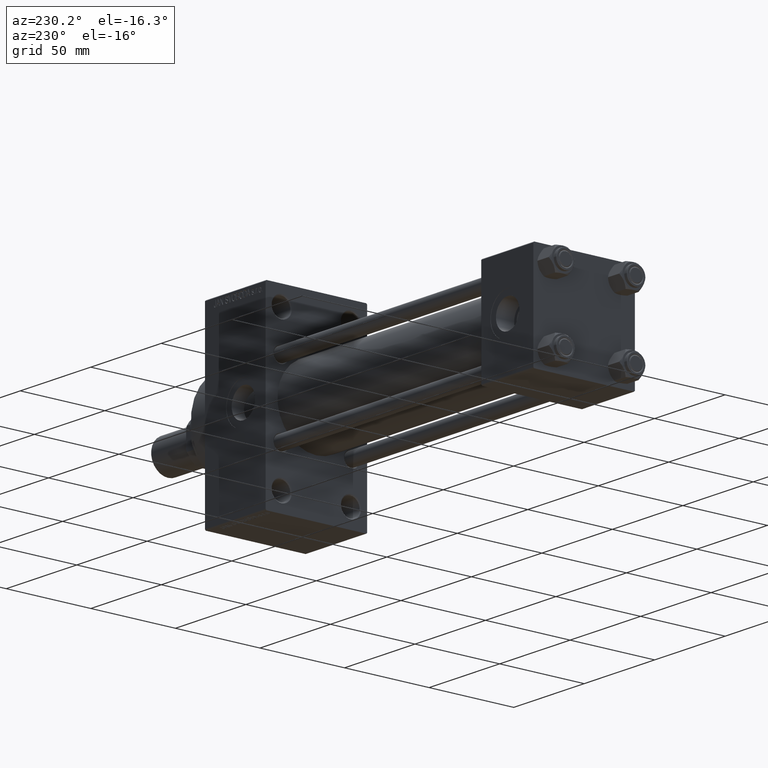
[diagram: clean part render]
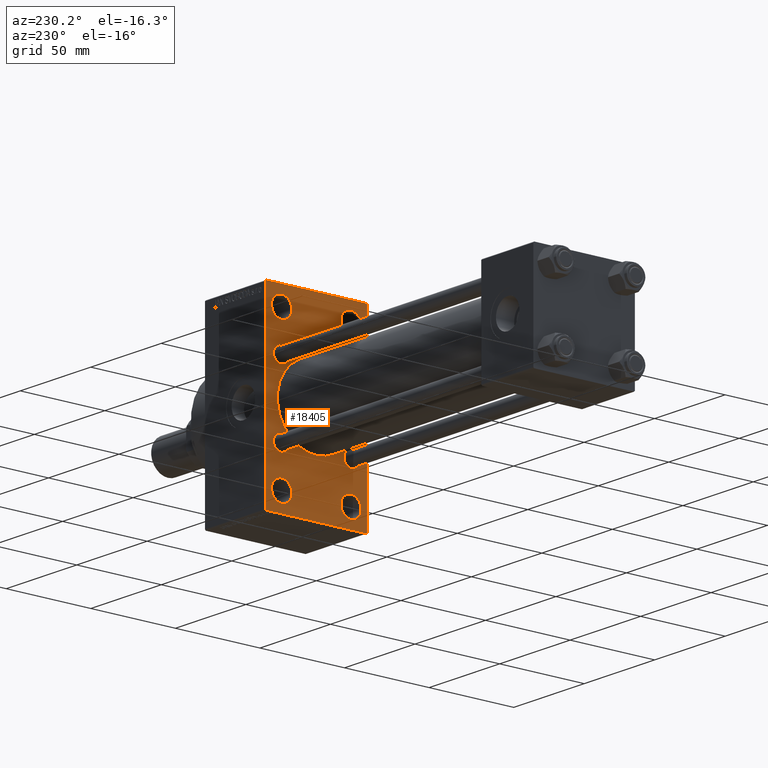
[diagram: same view with one face highlighted and labeled with its STEP entity id]
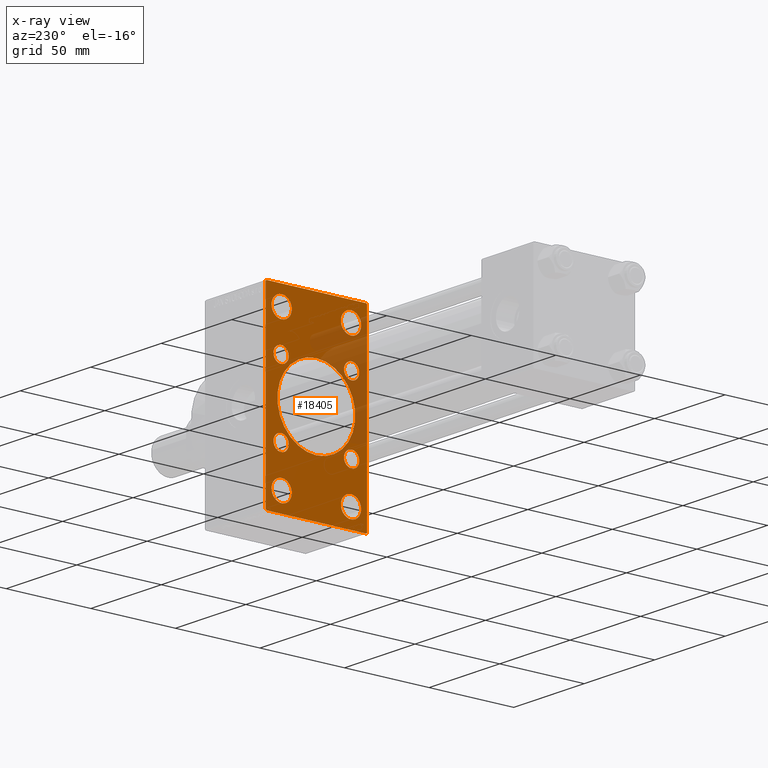
[diagram: x-ray of the same camera — body ghosted, the highlighted face saturated]
A machine part, auxiliary view. The second image highlights one B-rep face of the part: STEP entity #18405.
The next image is the same camera in x-ray: the body ghosted, the highlighted face saturated — about 19% of this face is hidden behind the body in this view.
In plain terms, the highlighted planar face has unit normal (-1, 0, 0).
Its self-contained STEP definition (entity closure, byte-faithful):
#133 = CARTESIAN_POINT ( 'NONE',  ( 190.0000000000000000, 20.50000000000000000, 49.50000000000002842 ) ) ;
#409 = CIRCLE ( 'NONE', #42805, 6.000000000000032863 ) ;
#588 = EDGE_LOOP ( 'NONE', ( #32797, #25809 ) ) ;
#665 = LINE ( 'NONE', #18767, #21234 ) ;
#837 = CARTESIAN_POINT ( 'NONE',  ( 190.0000000000000000, 20.50000000000000000, 43.50000000000000000 ) ) ;
#855 = VERTEX_POINT ( 'NONE', #12144 ) ;
#1252 = CARTESIAN_POINT ( 'NONE',  ( 190.0000000000000000, -20.84999999999999076, 16.34999999999999787 ) ) ;
#1516 = VERTEX_POINT ( 'NONE', #11193 ) ;
#1728 = DIRECTION ( 'NONE',  ( 1.000000000000000000, -0.000000000000000000, 0.000000000000000000 ) ) ;
#1781 = CARTESIAN_POINT ( 'NONE',  ( 190.0000000000000000, 29.99999999999999645, 54.49999999999999289 ) ) ;
#2284 = VERTEX_POINT ( 'NONE', #133 ) ;
#2349 = VERTEX_POINT ( 'NONE', #33930 ) ;
#2747 = DIRECTION ( 'NONE',  ( 1.000000000000000000, -0.000000000000000000, 0.000000000000000000 ) ) ;
#2772 = CARTESIAN_POINT ( 'NONE',  ( 190.0000000000000000, -20.84999999999999076, -25.35000000000001208 ) ) ;
#2862 = DIRECTION ( 'NONE',  ( -0.000000000000000000, 0.7071067811865451302, 0.7071067811865500152 ) ) ;
#2889 = VERTEX_POINT ( 'NONE', #20971 ) ;
#3001 = CARTESIAN_POINT ( 'NONE',  ( 190.0000000000000000, 29.99999999999999645, -53.99999999999999289 ) ) ;
#3039 = EDGE_CURVE ( 'NONE', #22940, #7511, #40424, .T. ) ;
#3047 = CARTESIAN_POINT ( 'NONE',  ( 190.0000000000000000, 20.84999999999999787, -20.85000000000000142 ) ) ;
#3224 = AXIS2_PLACEMENT_3D ( 'NONE', #45715, #5160, #5644 ) ;
#3840 = DIRECTION ( 'NONE',  ( 0.000000000000000000, 0.000000000000000000, -1.000000000000000000 ) ) ;
#3885 = CIRCLE ( 'NONE', #36261, 4.500000000000007105 ) ;
#3960 = VERTEX_POINT ( 'NONE', #34699 ) ;
#4044 = ORIENTED_EDGE ( 'NONE', *, *, #27267, .T. ) ;
#4435 = EDGE_LOOP ( 'NONE', ( #10347, #12776 ) ) ;
#4749 = VECTOR ( 'NONE', #7026, 1000.000000000000000 ) ;
#4860 = AXIS2_PLACEMENT_3D ( 'NONE', #20048, #23911, #20295 ) ;
#5123 = CIRCLE ( 'NONE', #32120, 6.000000000000032863 ) ;
#5139 = ORIENTED_EDGE ( 'NONE', *, *, #13516, .T. ) ;
#5160 = DIRECTION ( 'NONE',  ( 1.000000000000000000, -0.000000000000000000, 0.000000000000000000 ) ) ;
#5574 = CARTESIAN_POINT ( 'NONE',  ( 190.0000000000000000, 20.84999999999999787, 25.35000000000000853 ) ) ;
#5644 = DIRECTION ( 'NONE',  ( 0.000000000000000000, 0.000000000000000000, 1.000000000000000000 ) ) ;
#6079 = EDGE_CURVE ( 'NONE', #2889, #21177, #665, .T. ) ;
#6340 = AXIS2_PLACEMENT_3D ( 'NONE', #45184, #1728, #34574 ) ;
#6479 = LINE ( 'NONE', #43645, #43540 ) ;
#6529 = DIRECTION ( 'NONE',  ( 1.000000000000000000, -0.000000000000000000, 0.000000000000000000 ) ) ;
#6825 = DIRECTION ( 'NONE',  ( -1.000000000000000000, 0.000000000000000000, -0.000000000000000000 ) ) ;
#6989 = DIRECTION ( 'NONE',  ( 0.000000000000000000, 0.000000000000000000, 1.000000000000000000 ) ) ;
#7026 = DIRECTION ( 'NONE',  ( 0.000000000000000000, 0.000000000000000000, -1.000000000000000000 ) ) ;
#7043 = ORIENTED_EDGE ( 'NONE', *, *, #14968, .T. ) ;
#7327 = CARTESIAN_POINT ( 'NONE',  ( 190.0000000000000000, -20.84999999999999076, -20.85000000000000497 ) ) ;
#7336 = CARTESIAN_POINT ( 'NONE',  ( 190.0000000000000000, 20.84999999999999787, 20.85000000000000142 ) ) ;
#7427 = CARTESIAN_POINT ( 'NONE',  ( 190.0000000000000000, 20.50000000000000000, -49.50000000000002842 ) ) ;
#7476 = DIRECTION ( 'NONE',  ( 1.000000000000000000, 0.000000000000000000, 0.000000000000000000 ) ) ;
#7511 = VERTEX_POINT ( 'NONE', #47394 ) ;
#7602 = DIRECTION ( 'NONE',  ( 0.000000000000000000, 0.000000000000000000, 1.000000000000000000 ) ) ;
#7657 = LINE ( 'NONE', #29390, #29370 ) ;
#7964 = DIRECTION ( 'NONE',  ( 0.000000000000000000, 0.000000000000000000, 1.000000000000000000 ) ) ;
#8258 = CIRCLE ( 'NONE', #26732, 4.500000000000007105 ) ;
#8425 = CARTESIAN_POINT ( 'NONE',  ( 190.0000000000000000, -29.50000000000000355, -54.50000000000000000 ) ) ;
#8476 = DIRECTION ( 'NONE',  ( 0.000000000000000000, 0.000000000000000000, 1.000000000000000000 ) ) ;
#9237 = AXIS2_PLACEMENT_3D ( 'NONE', #39572, #33033, #14435 ) ;
#9304 = CARTESIAN_POINT ( 'NONE',  ( 190.0000000000000000, -20.50000000000000000, 43.50000000000000000 ) ) ;
#9881 = ORIENTED_EDGE ( 'NONE', *, *, #17416, .T. ) ;
#9968 = CARTESIAN_POINT ( 'NONE',  ( 190.0000000000000000, 29.49999999999999645, 54.49999999999999289 ) ) ;
#10007 = ORIENTED_EDGE ( 'NONE', *, *, #15688, .F. ) ;
#10347 = ORIENTED_EDGE ( 'NONE', *, *, #20755, .T. ) ;
#10422 = ORIENTED_EDGE ( 'NONE', *, *, #16259, .T. ) ;
#10434 = PLANE ( 'NONE',  #27194 ) ;
#11074 = CIRCLE ( 'NONE', #33448, 6.000000000000032863 ) ;
#11102 = VERTEX_POINT ( 'NONE', #7427 ) ;
#11150 = CARTESIAN_POINT ( 'NONE',  ( 190.0000000000000000, -20.84999999999999076, 20.85000000000000497 ) ) ;
#11165 = DIRECTION ( 'NONE',  ( 0.000000000000000000, 0.000000000000000000, 1.000000000000000000 ) ) ;
#11193 = CARTESIAN_POINT ( 'NONE',  ( 190.0000000000000000, 20.84999999999999787, 16.34999999999999432 ) ) ;
#11565 = AXIS2_PLACEMENT_3D ( 'NONE', #11150, #2747, #24946 ) ;
#11683 = CIRCLE ( 'NONE', #3224, 4.500000000000007105 ) ;
#12078 = VERTEX_POINT ( 'NONE', #42404 ) ;
#12131 = CARTESIAN_POINT ( 'NONE',  ( 190.0000000000000000, 20.50000000000000000, 37.49999999999996447 ) ) ;
#12144 = CARTESIAN_POINT ( 'NONE',  ( 190.0000000000000000, -20.84999999999999076, 25.35000000000001208 ) ) ;
#12263 = CARTESIAN_POINT ( 'NONE',  ( 190.0000000000000000, 20.50000000000000000, -43.50000000000000000 ) ) ;
#12439 = DIRECTION ( 'NONE',  ( 1.000000000000000000, -0.000000000000000000, 0.000000000000000000 ) ) ;
#12776 = ORIENTED_EDGE ( 'NONE', *, *, #36353, .T. ) ;
#12827 = EDGE_CURVE ( 'NONE', #47519, #31850, #30045, .T. ) ;
#12912 = DIRECTION ( 'NONE',  ( 0.000000000000000000, 0.000000000000000000, 1.000000000000000000 ) ) ;
#12929 = LINE ( 'NONE', #35164, #40240 ) ;
#12941 = FACE_BOUND ( 'NONE', #37028, .T. ) ;
#13265 = CARTESIAN_POINT ( 'NONE',  ( 190.0000000000000000, 20.84999999999999787, -25.35000000000000853 ) ) ;
#13475 = CARTESIAN_POINT ( 'NONE',  ( 190.0000000000000000, -30.00000000000000000, -53.99999999999998579 ) ) ;
#13516 = EDGE_CURVE ( 'NONE', #29473, #1516, #3885, .T. ) ;
#14263 = ORIENTED_EDGE ( 'NONE', *, *, #24944, .T. ) ;
#14435 = DIRECTION ( 'NONE',  ( 0.000000000000000000, 0.000000000000000000, -1.000000000000000000 ) ) ;
#14599 = CARTESIAN_POINT ( 'NONE',  ( 190.0000000000000000, 29.99999999999999645, 54.49999999999999289 ) ) ;
#14818 = CARTESIAN_POINT ( 'NONE',  ( 190.0000000000000000, 20.50000000000000000, -43.50000000000000000 ) ) ;
#14968 = EDGE_CURVE ( 'NONE', #1516, #29473, #19357, .T. ) ;
#15646 = DIRECTION ( 'NONE',  ( 0.000000000000000000, 0.000000000000000000, 1.000000000000000000 ) ) ;
#15688 = EDGE_CURVE ( 'NONE', #38583, #37277, #20124, .T. ) ;
#16083 = AXIS2_PLACEMENT_3D ( 'NONE', #3047, #25495, #25745 ) ;
#16259 = EDGE_CURVE ( 'NONE', #31850, #47519, #24062, .T. ) ;
#16312 = FACE_OUTER_BOUND ( 'NONE', #43351, .T. ) ;
#16396 = DIRECTION ( 'NONE',  ( 1.000000000000000000, -0.000000000000000000, 0.000000000000000000 ) ) ;
#16532 = DIRECTION ( 'NONE',  ( 1.000000000000000000, -0.000000000000000000, 0.000000000000000000 ) ) ;
#16549 = ORIENTED_EDGE ( 'NONE', *, *, #30697, .T. ) ;
#16883 = ORIENTED_EDGE ( 'NONE', *, *, #20263, .T. ) ;
#17416 = EDGE_CURVE ( 'NONE', #38583, #2349, #12929, .T. ) ;
#17680 = FACE_BOUND ( 'NONE', #19448, .T. ) ;
#17878 = VERTEX_POINT ( 'NONE', #1252 ) ;
#17933 = DIRECTION ( 'NONE',  ( 1.000000000000000000, -0.000000000000000000, 0.000000000000000000 ) ) ;
#18405 = ADVANCED_FACE ( 'NONE', ( #12941, #17680, #28801, #46255, #27676, #27913, #42632, #36283, #47118, #16312 ), #10434, .T. ) ;
#18472 = DIRECTION ( 'NONE',  ( 0.000000000000000000, 0.000000000000000000, -1.000000000000000000 ) ) ;
#18767 = CARTESIAN_POINT ( 'NONE',  ( 190.0000000000000000, 29.99999999999999645, -54.49999999999999289 ) ) ;
#19357 = CIRCLE ( 'NONE', #27084, 4.500000000000007105 ) ;
#19375 = VERTEX_POINT ( 'NONE', #39033 ) ;
#19448 = EDGE_LOOP ( 'NONE', ( #26913, #32156 ) ) ;
#19503 = ORIENTED_EDGE ( 'NONE', *, *, #30296, .T. ) ;
#19521 = CIRCLE ( 'NONE', #4860, 6.000000000000032863 ) ;
#20029 = ORIENTED_EDGE ( 'NONE', *, *, #31494, .T. ) ;
#20048 = CARTESIAN_POINT ( 'NONE',  ( 190.0000000000000000, -20.50000000000000000, -43.50000000000000000 ) ) ;
#20124 = LINE ( 'NONE', #1781, #44787 ) ;
#20263 = EDGE_CURVE ( 'NONE', #19375, #3960, #40313, .T. ) ;
#20295 = DIRECTION ( 'NONE',  ( 0.000000000000000000, 0.000000000000000000, 1.000000000000000000 ) ) ;
#20518 = EDGE_CURVE ( 'NONE', #17878, #855, #11683, .T. ) ;
#20755 = EDGE_CURVE ( 'NONE', #38870, #39509, #20985, .T. ) ;
#20971 = CARTESIAN_POINT ( 'NONE',  ( 190.0000000000000000, 29.49999999999999645, -54.49999999999999289 ) ) ;
#20985 = CIRCLE ( 'NONE', #6340, 4.500000000000007105 ) ;
#21122 = VECTOR ( 'NONE', #46603, 1000.000000000000114 ) ;
#21177 = VERTEX_POINT ( 'NONE', #8425 ) ;
#21234 = VECTOR ( 'NONE', #32794, 1000.000000000000000 ) ;
#21513 = LINE ( 'NONE', #36253, #4749 ) ;
#21612 = LINE ( 'NONE', #14599, #25975 ) ;
#22079 = CIRCLE ( 'NONE', #36773, 6.000000000000032863 ) ;
#22353 = ORIENTED_EDGE ( 'NONE', *, *, #37478, .T. ) ;
#22404 = AXIS2_PLACEMENT_3D ( 'NONE', #23163, #17933, #7964 ) ;
#22940 = VERTEX_POINT ( 'NONE', #31330 ) ;
#23163 = CARTESIAN_POINT ( 'NONE',  ( 190.0000000000000000, -20.84999999999999076, -20.85000000000000497 ) ) ;
#23332 = ORIENTED_EDGE ( 'NONE', *, *, #20518, .T. ) ;
#23911 = DIRECTION ( 'NONE',  ( 1.000000000000000000, -0.000000000000000000, 0.000000000000000000 ) ) ;
#24062 = CIRCLE ( 'NONE', #31741, 23.00000000000000000 ) ;
#24227 = ORIENTED_EDGE ( 'NONE', *, *, #24620, .T. ) ;
#24414 = CIRCLE ( 'NONE', #29018, 6.000000000000032863 ) ;
#24620 = EDGE_CURVE ( 'NONE', #40887, #2889, #26343, .T. ) ;
#24869 = EDGE_LOOP ( 'NONE', ( #5139, #7043 ) ) ;
#24944 = EDGE_CURVE ( 'NONE', #37858, #11102, #11074, .T. ) ;
#24946 = DIRECTION ( 'NONE',  ( 0.000000000000000000, 0.000000000000000000, 1.000000000000000000 ) ) ;
#25140 = VERTEX_POINT ( 'NONE', #13475 ) ;
#25181 = DIRECTION ( 'NONE',  ( -0.000000000000000000, 0.000000000000000000, 1.000000000000000000 ) ) ;
#25208 = DIRECTION ( 'NONE',  ( 0.000000000000000000, 0.000000000000000000, 1.000000000000000000 ) ) ;
#25495 = DIRECTION ( 'NONE',  ( 1.000000000000000000, -0.000000000000000000, 0.000000000000000000 ) ) ;
#25745 = DIRECTION ( 'NONE',  ( 0.000000000000000000, 0.000000000000000000, 1.000000000000000000 ) ) ;
#25809 = ORIENTED_EDGE ( 'NONE', *, *, #38678, .T. ) ;
#25964 = DIRECTION ( 'NONE',  ( 1.000000000000000000, -0.000000000000000000, 0.000000000000000000 ) ) ;
#25975 = VECTOR ( 'NONE', #18472, 1000.000000000000000 ) ;
#26245 = DIRECTION ( 'NONE',  ( 0.000000000000000000, -0.7071067811865352493, 0.7071067811865597852 ) ) ;
#26343 = LINE ( 'NONE', #41057, #21122 ) ;
#26732 = AXIS2_PLACEMENT_3D ( 'NONE', #7327, #44253, #11165 ) ;
#26772 = DIRECTION ( 'NONE',  ( 1.000000000000000000, -0.000000000000000000, 0.000000000000000000 ) ) ;
#26913 = ORIENTED_EDGE ( 'NONE', *, *, #3039, .T. ) ;
#27084 = AXIS2_PLACEMENT_3D ( 'NONE', #7336, #44506, #25208 ) ;
#27194 = AXIS2_PLACEMENT_3D ( 'NONE', #43516, #6825, #25181 ) ;
#27267 = EDGE_CURVE ( 'NONE', #36025, #37277, #6479, .T. ) ;
#27527 = CARTESIAN_POINT ( 'NONE',  ( 190.0000000000000000, -20.50000000000000000, 43.50000000000000000 ) ) ;
#27676 = FACE_BOUND ( 'NONE', #35909, .T. ) ;
#27714 = EDGE_CURVE ( 'NONE', #39999, #2284, #409, .T. ) ;
#27913 = FACE_BOUND ( 'NONE', #24869, .T. ) ;
#28753 = VERTEX_POINT ( 'NONE', #2772 ) ;
#28801 = FACE_BOUND ( 'NONE', #35352, .T. ) ;
#29018 = AXIS2_PLACEMENT_3D ( 'NONE', #14818, #40422, #8476 ) ;
#29370 = VECTOR ( 'NONE', #26245, 1000.000000000000000 ) ;
#29390 = CARTESIAN_POINT ( 'NONE',  ( 190.0000000000000000, -42.00000000000051159, -41.99999999999905498 ) ) ;
#29434 = CARTESIAN_POINT ( 'NONE',  ( 190.0000000000000000, -2.602085213965210642E-15, 0.000000000000000000 ) ) ;
#29473 = VERTEX_POINT ( 'NONE', #5574 ) ;
#30045 = CIRCLE ( 'NONE', #9237, 23.00000000000000000 ) ;
#30296 = EDGE_CURVE ( 'NONE', #11102, #37858, #24414, .T. ) ;
#30697 = EDGE_CURVE ( 'NONE', #2284, #39999, #22079, .T. ) ;
#31330 = CARTESIAN_POINT ( 'NONE',  ( 190.0000000000000000, -20.50000000000000000, -37.49999999999996447 ) ) ;
#31391 = DIRECTION ( 'NONE',  ( 0.000000000000000000, 0.000000000000000000, 1.000000000000000000 ) ) ;
#31494 = EDGE_CURVE ( 'NONE', #3960, #19375, #5123, .T. ) ;
#31741 = AXIS2_PLACEMENT_3D ( 'NONE', #29434, #7476, #3840 ) ;
#31850 = VERTEX_POINT ( 'NONE', #37122 ) ;
#32086 = EDGE_CURVE ( 'NONE', #2349, #40887, #21612, .T. ) ;
#32120 = AXIS2_PLACEMENT_3D ( 'NONE', #27527, #16396, #31391 ) ;
#32156 = ORIENTED_EDGE ( 'NONE', *, *, #47235, .T. ) ;
#32333 = EDGE_LOOP ( 'NONE', ( #10422, #44105 ) ) ;
#32458 = DIRECTION ( 'NONE',  ( 0.000000000000000000, 0.7071067811865474617, -0.7071067811865474617 ) ) ;
#32794 = DIRECTION ( 'NONE',  ( 0.000000000000000000, -1.000000000000000000, -1.156482317317871478E-16 ) ) ;
#32797 = ORIENTED_EDGE ( 'NONE', *, *, #35540, .T. ) ;
#32830 = EDGE_LOOP ( 'NONE', ( #16549, #39010 ) ) ;
#33014 = DIRECTION ( 'NONE',  ( 1.000000000000000000, -0.000000000000000000, 0.000000000000000000 ) ) ;
#33033 = DIRECTION ( 'NONE',  ( 1.000000000000000000, 0.000000000000000000, 0.000000000000000000 ) ) ;
#33054 = CIRCLE ( 'NONE', #16083, 4.500000000000007105 ) ;
#33448 = AXIS2_PLACEMENT_3D ( 'NONE', #12263, #26772, #15646 ) ;
#33930 = CARTESIAN_POINT ( 'NONE',  ( 190.0000000000000000, 29.99999999999999645, 53.99999999999999289 ) ) ;
#33970 = CARTESIAN_POINT ( 'NONE',  ( 190.0000000000000000, -29.50000000000000355, 54.50000000000000000 ) ) ;
#34574 = DIRECTION ( 'NONE',  ( 0.000000000000000000, 0.000000000000000000, 1.000000000000000000 ) ) ;
#34699 = CARTESIAN_POINT ( 'NONE',  ( 190.0000000000000000, -20.50000000000000000, 37.49999999999996447 ) ) ;
#34855 = DIRECTION ( 'NONE',  ( 0.000000000000000000, -1.000000000000000000, 1.156482317317871478E-16 ) ) ;
#35164 = CARTESIAN_POINT ( 'NONE',  ( 190.0000000000000000, 41.99999999999998579, 41.99999999999998579 ) ) ;
#35169 = ORIENTED_EDGE ( 'NONE', *, *, #32086, .T. ) ;
#35250 = ORIENTED_EDGE ( 'NONE', *, *, #6079, .T. ) ;
#35352 = EDGE_LOOP ( 'NONE', ( #14263, #19503 ) ) ;
#35540 = EDGE_CURVE ( 'NONE', #12078, #28753, #8258, .T. ) ;
#35909 = EDGE_LOOP ( 'NONE', ( #22353, #23332 ) ) ;
#36025 = VERTEX_POINT ( 'NONE', #40752 ) ;
#36253 = CARTESIAN_POINT ( 'NONE',  ( 190.0000000000000000, -30.00000000000000000, 54.50000000000000000 ) ) ;
#36261 = AXIS2_PLACEMENT_3D ( 'NONE', #45747, #16532, #12912 ) ;
#36283 = FACE_BOUND ( 'NONE', #588, .T. ) ;
#36353 = EDGE_CURVE ( 'NONE', #39509, #38870, #33054, .T. ) ;
#36733 = CARTESIAN_POINT ( 'NONE',  ( 190.0000000000000000, 2.146024240737016609E-16, -23.00000000000000000 ) ) ;
#36773 = AXIS2_PLACEMENT_3D ( 'NONE', #40061, #6529, #6989 ) ;
#37028 = EDGE_LOOP ( 'NONE', ( #16883, #20029 ) ) ;
#37109 = CARTESIAN_POINT ( 'NONE',  ( 190.0000000000000000, -20.50000000000000000, -43.50000000000000000 ) ) ;
#37122 = CARTESIAN_POINT ( 'NONE',  ( 190.0000000000000000, -2.602085213965210642E-15, 23.00000000000000000 ) ) ;
#37277 = VERTEX_POINT ( 'NONE', #33970 ) ;
#37478 = EDGE_CURVE ( 'NONE', #855, #17878, #43191, .T. ) ;
#37858 = VERTEX_POINT ( 'NONE', #46097 ) ;
#38016 = EDGE_CURVE ( 'NONE', #21177, #25140, #7657, .T. ) ;
#38583 = VERTEX_POINT ( 'NONE', #9968 ) ;
#38678 = EDGE_CURVE ( 'NONE', #28753, #12078, #43223, .T. ) ;
#38870 = VERTEX_POINT ( 'NONE', #39106 ) ;
#39010 = ORIENTED_EDGE ( 'NONE', *, *, #27714, .T. ) ;
#39033 = CARTESIAN_POINT ( 'NONE',  ( 190.0000000000000000, -20.50000000000000000, 49.50000000000002842 ) ) ;
#39106 = CARTESIAN_POINT ( 'NONE',  ( 190.0000000000000000, 20.84999999999999787, -16.34999999999999432 ) ) ;
#39509 = VERTEX_POINT ( 'NONE', #13265 ) ;
#39572 = CARTESIAN_POINT ( 'NONE',  ( 190.0000000000000000, -2.602085213965210642E-15, 0.000000000000000000 ) ) ;
#39999 = VERTEX_POINT ( 'NONE', #12131 ) ;
#40061 = CARTESIAN_POINT ( 'NONE',  ( 190.0000000000000000, 20.50000000000000000, 43.50000000000000000 ) ) ;
#40156 = EDGE_CURVE ( 'NONE', #36025, #25140, #21513, .T. ) ;
#40240 = VECTOR ( 'NONE', #32458, 1000.000000000000114 ) ;
#40313 = CIRCLE ( 'NONE', #44171, 6.000000000000032863 ) ;
#40422 = DIRECTION ( 'NONE',  ( 1.000000000000000000, -0.000000000000000000, 0.000000000000000000 ) ) ;
#40424 = CIRCLE ( 'NONE', #42744, 6.000000000000032863 ) ;
#40752 = CARTESIAN_POINT ( 'NONE',  ( 190.0000000000000000, -30.00000000000000000, 54.00000000000000000 ) ) ;
#40887 = VERTEX_POINT ( 'NONE', #3001 ) ;
#41057 = CARTESIAN_POINT ( 'NONE',  ( 190.0000000000000000, 41.99999999999998579, -41.99999999999998579 ) ) ;
#42143 = DIRECTION ( 'NONE',  ( 0.000000000000000000, 0.000000000000000000, 1.000000000000000000 ) ) ;
#42404 = CARTESIAN_POINT ( 'NONE',  ( 190.0000000000000000, -20.84999999999999076, -16.34999999999999787 ) ) ;
#42632 = FACE_BOUND ( 'NONE', #4435, .T. ) ;
#42744 = AXIS2_PLACEMENT_3D ( 'NONE', #37109, #33014, #47713 ) ;
#42805 = AXIS2_PLACEMENT_3D ( 'NONE', #837, #25964, #7602 ) ;
#43191 = CIRCLE ( 'NONE', #11565, 4.500000000000007105 ) ;
#43223 = CIRCLE ( 'NONE', #22404, 4.500000000000007105 ) ;
#43249 = ORIENTED_EDGE ( 'NONE', *, *, #40156, .F. ) ;
#43351 = EDGE_LOOP ( 'NONE', ( #35250, #45394, #43249, #4044, #10007, #9881, #35169, #24227 ) ) ;
#43516 = CARTESIAN_POINT ( 'NONE',  ( 190.0000000000000000, 0.000000000000000000, 0.000000000000000000 ) ) ;
#43540 = VECTOR ( 'NONE', #2862, 1000.000000000000114 ) ;
#43645 = CARTESIAN_POINT ( 'NONE',  ( 190.0000000000000000, -42.00000000000009948, 41.99999999999980815 ) ) ;
#44105 = ORIENTED_EDGE ( 'NONE', *, *, #12827, .T. ) ;
#44171 = AXIS2_PLACEMENT_3D ( 'NONE', #9304, #12439, #42143 ) ;
#44253 = DIRECTION ( 'NONE',  ( 1.000000000000000000, -0.000000000000000000, 0.000000000000000000 ) ) ;
#44506 = DIRECTION ( 'NONE',  ( 1.000000000000000000, -0.000000000000000000, 0.000000000000000000 ) ) ;
#44787 = VECTOR ( 'NONE', #34855, 1000.000000000000000 ) ;
#45184 = CARTESIAN_POINT ( 'NONE',  ( 190.0000000000000000, 20.84999999999999787, -20.85000000000000142 ) ) ;
#45394 = ORIENTED_EDGE ( 'NONE', *, *, #38016, .T. ) ;
#45715 = CARTESIAN_POINT ( 'NONE',  ( 190.0000000000000000, -20.84999999999999076, 20.85000000000000497 ) ) ;
#45747 = CARTESIAN_POINT ( 'NONE',  ( 190.0000000000000000, 20.84999999999999787, 20.85000000000000142 ) ) ;
#46097 = CARTESIAN_POINT ( 'NONE',  ( 190.0000000000000000, 20.50000000000000000, -37.49999999999996447 ) ) ;
#46255 = FACE_BOUND ( 'NONE', #32830, .T. ) ;
#46603 = DIRECTION ( 'NONE',  ( -0.000000000000000000, -0.7071067811865474617, -0.7071067811865474617 ) ) ;
#47118 = FACE_BOUND ( 'NONE', #32333, .T. ) ;
#47235 = EDGE_CURVE ( 'NONE', #7511, #22940, #19521, .T. ) ;
#47394 = CARTESIAN_POINT ( 'NONE',  ( 190.0000000000000000, -20.50000000000000000, -49.50000000000002842 ) ) ;
#47519 = VERTEX_POINT ( 'NONE', #36733 ) ;
#47713 = DIRECTION ( 'NONE',  ( 0.000000000000000000, 0.000000000000000000, 1.000000000000000000 ) ) ;